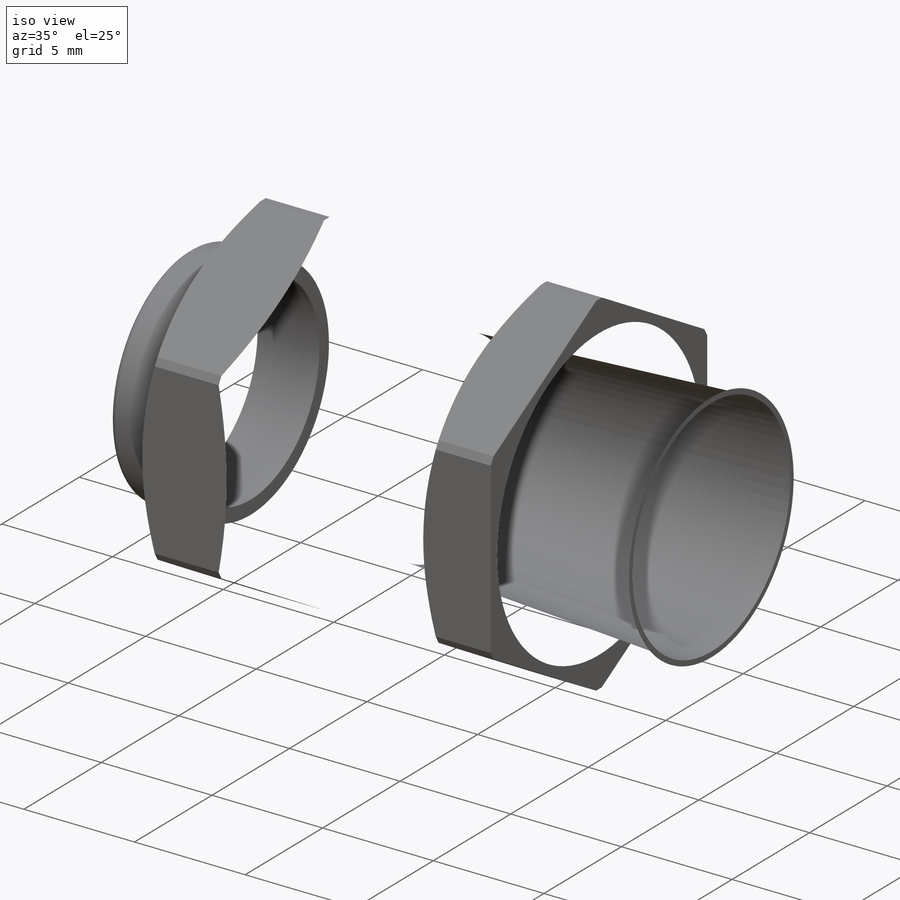
[diagram: iso view]
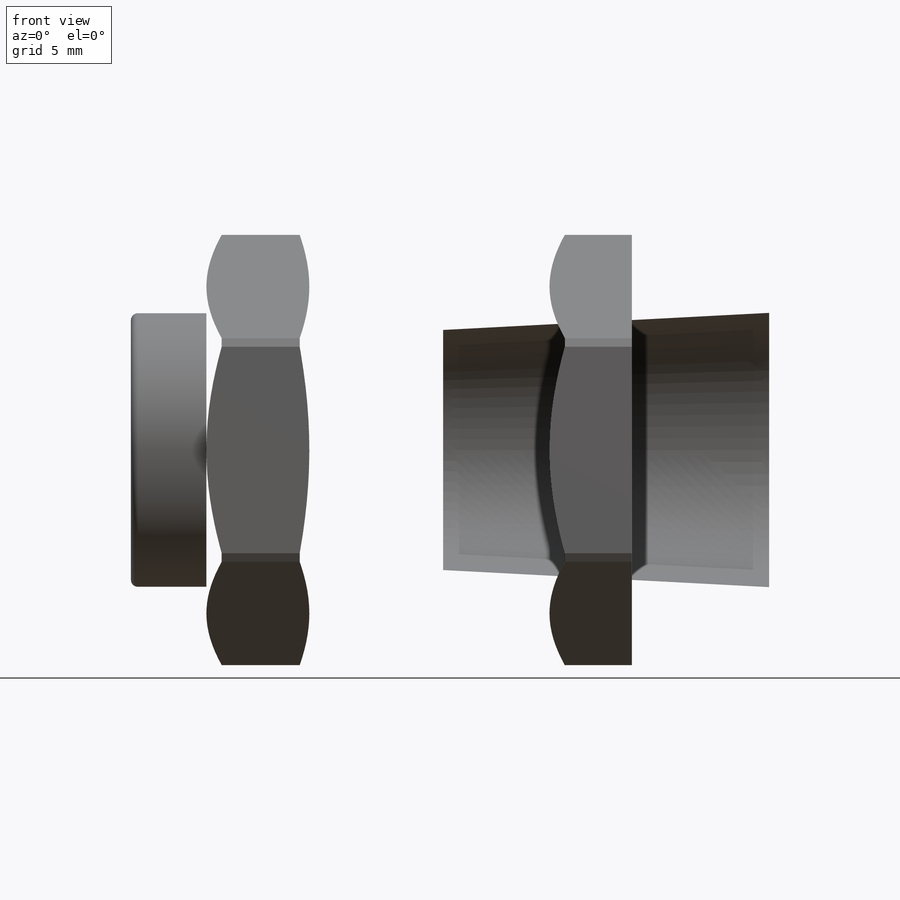
[diagram: front view]
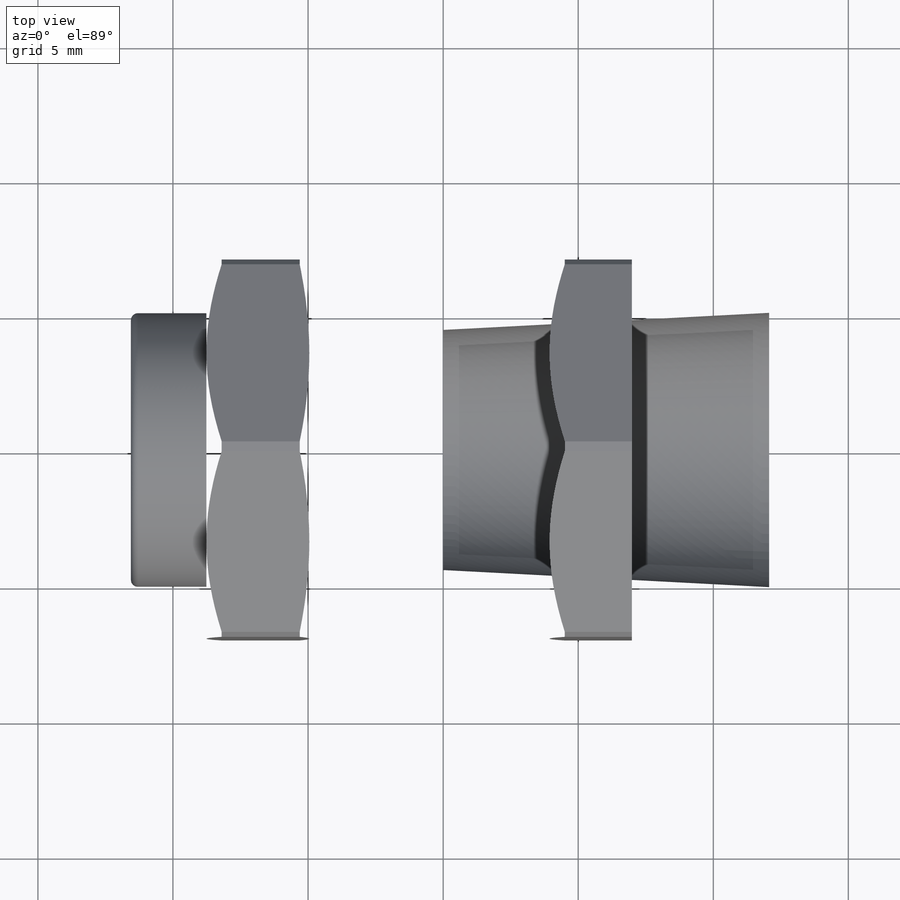
[diagram: top view]
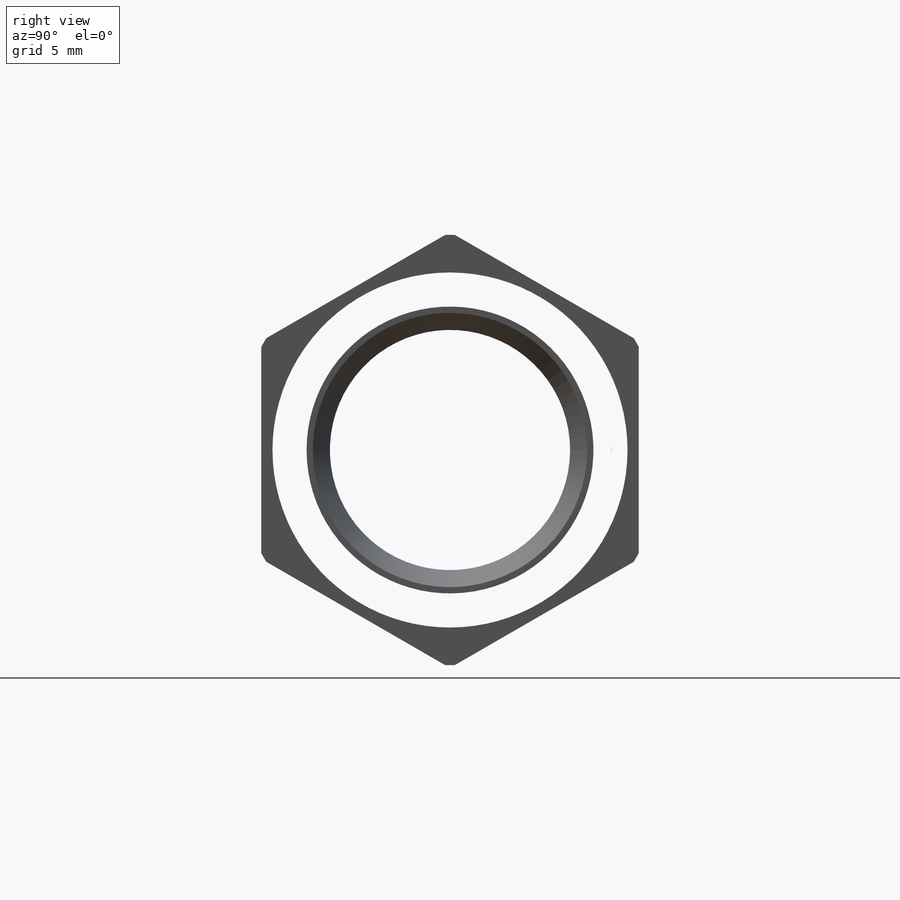
[diagram: right view]
SOLIDWORKS PART (.sldprt)
format: sldprt  version: not decoded by parser v0  size: 902,656 bytes
history: native  units: mm
features: sketch x12, revolve x4, cut_extrude x4, fillet x2, cut_revolve x2, pattern_linear x2, material x1, extrude x1 (+14 scaffold rows collapsed)
feature tree (42):
  scaffold x14  (default folders/planes/origin — collapsed)
  material  "Material <not specified>"
  sketch  "Sketch2"  dims[c1.CableDia=8.89mm c1.D2=~34.342246mm c1.Angle=0.001deg c1.B=19.05mm c1.D=5.08mm c1.NutWidth=3.81mm c1.NutWidth1=3.048mm c1.A=12.446mm c1.NPT=11.938mm c1.F/F1=15.9258mm c1.D5=~7.894301mm c1.D4=3.302mm c2.D5=3.048mm c2.F/F1-=13.97mm c2.D7=~34.342246mm c2.D1=~10.12825mm c2.D3=12.065mm c3.D3=3.0deg c3.D6=13.97mm]
  revolve  "Revolve1"  Angle=360deg
  sketch  "Sketch6"  dims[c1.F/F1=13.97mm c2.F/F1=13.97mm]
  cut_extrude  "Cut-Extrude2"  [1 undecoded]
  sketch  "Sketch7"  dims[D1=13.97mm]
  cut_extrude  "Cut-Extrude3"  Depth=2.54mm
  sketch  "Sketch8"
  cut_extrude  "Cut-Extrude4"  Depth=2.54mm
  sketch  "Sketch9"
  cut_extrude  "Cut-Extrude5"  [1 undecoded]
  sketch  "Sketch12"  dims[D2=0.254mm D1=0.508mm D3=0.254mm]
  revolve  "Revolve3"  Angle=360deg
  sketch  "Sketch19"  dims[D2=0.381mm D1=0.3175mm D3=0.254mm]
  revolve  "Revolve5"  Angle=360deg
  fillet  "Fillet1"  Radius=1.7145mm
  sketch  "Sketch13"  dims[c1.D1=~1.070257mm c2.D1=60.0deg c2.D2=~0.523806mm c3.D2=30.0deg c3.H=~1.350302mm c3.P=1.016mm c3.D1=~1.319823mm c4.D1=60.0deg c4.D2=1.524mm]
  cut_revolve  "Cut-Revolve1"  Angle=360deg
  pattern_linear  "LPattern1"  Count1=6 Count2=1 Spacing1=1.016mm Spacing2=50mm Number=6 Pitch=1.016mm
  sketch  "Sketch14"  dims[c1.D1=~3.823291mm c2.D1=30.0deg c2.D2=~0.956539mm c3.D2=60.0deg c3.H=1.524mm c3.D1=0.635mm c3.P=1.016mm c3.D3=~1.895412mm c4.D3=60.0deg]
  cut_revolve  "Cut-Revolve2"  Angle=360deg
  pattern_linear  "LPattern2"  Count1=5 Count2=1 Spacing1=1.016mm Spacing2=50mm
  sketch  "Sketch16"  dims[D1=0.0254mm]
  extrude  "Extrude4"  Depth=2.032mm
  fillet  "Fillet5"  Radius=0.254mm
  sketch  "Sketch18"  dims[D1=1.27mm D2=0.2032mm]
  revolve  "Revolve4"  Angle=360deg
  sketch  "Sketch17"  dims[c1.D2=~3.473062mm c1.D3=3.429mm c1.D1=~0.48895mm c2.D2=~0.633304mm c3.D2=~0.48895mm c3.D3=0.127mm]
decode coverage: 23 of 27 modeling features carry decoded parameters
note: ~ marks probable driven/reference dimensions
note: 2 parameter values undecoded
note: suppression state not decoded; provenance and decode notes live in map.json
